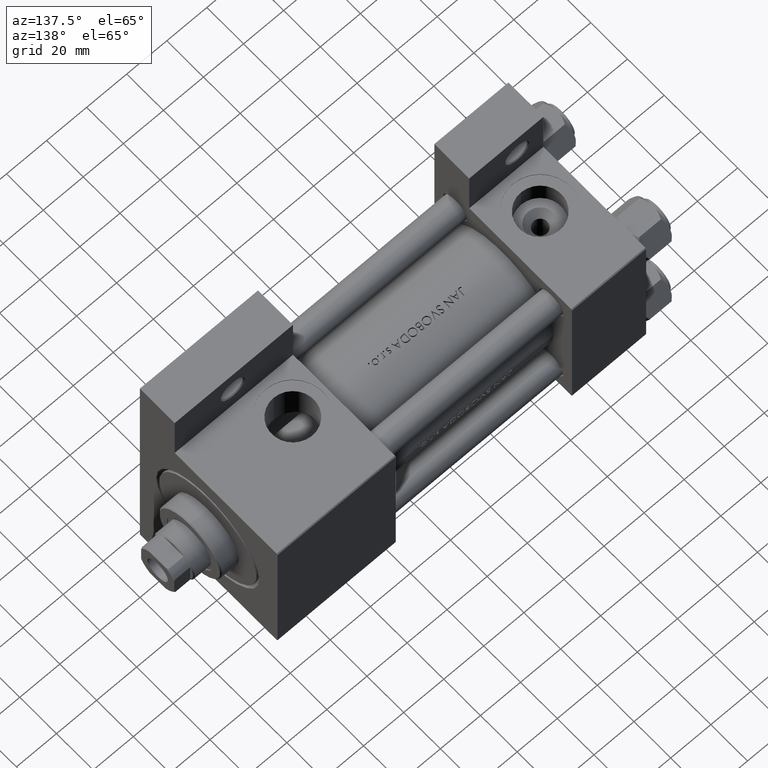
[diagram: clean part render]
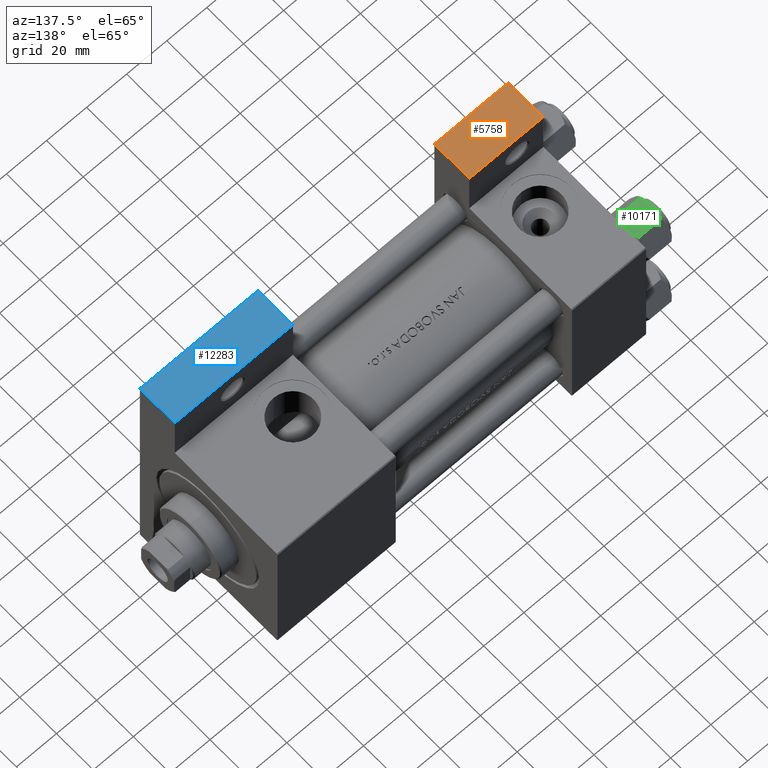
[diagram: same view with three faces highlighted in distinct colors, each labeled with its STEP entity id]
A machine part, auxiliary view with three faces highlighted in distinct colors.
Their STEP definitions:

[orange] entity #5758 — the highlighted planar face has unit normal (0, 0, 1).
#1189 = AXIS2_PLACEMENT_3D ( 'NONE', #5495, #20167, #46115 ) ;
#2026 = CARTESIAN_POINT ( 'NONE',  ( 3.977209754999747208E-16, -63.50000000000000000, -37.49999999999999289 ) ) ;
#2524 = DIRECTION ( 'NONE',  ( 1.000000000000000000, 0.000000000000000000, 0.000000000000000000 ) ) ;
#3813 = CARTESIAN_POINT ( 'NONE',  ( 3.977209754999747208E-16, -63.50000000000000000, -18.50000000000000355 ) ) ;
#4899 = EDGE_CURVE ( 'NONE', #7148, #11601, #11054, .T. ) ;
#5495 = CARTESIAN_POINT ( 'NONE',  ( 3.977209754999747208E-16, -63.49999999999998579, 26.72167621838007889 ) ) ;
#5758 = ADVANCED_FACE ( 'NONE', ( #27377 ), #42034, .T. ) ;
#6208 = DIRECTION ( 'NONE',  ( 0.000000000000000000, -1.734723475976806848E-16, -1.000000000000000000 ) ) ;
#7148 = VERTEX_POINT ( 'NONE', #15722 ) ;
#10285 = VERTEX_POINT ( 'NONE', #33606 ) ;
#11054 = LINE ( 'NONE', #15148, #14994 ) ;
#11601 = VERTEX_POINT ( 'NONE', #2026 ) ;
#12144 = EDGE_CURVE ( 'NONE', #16653, #11601, #40405, .T. ) ;
#14193 = CARTESIAN_POINT ( 'NONE',  ( 3.977209754999747208E-16, -63.49999999999998579, 26.72167621838007889 ) ) ;
#14994 = VECTOR ( 'NONE', #33423, 1000.000000000000000 ) ;
#15148 = CARTESIAN_POINT ( 'NONE',  ( 3.977209754999747208E-16, -63.50000000000000000, -37.49999999999999289 ) ) ;
#15492 = EDGE_CURVE ( 'NONE', #16653, #10285, #28258, .T. ) ;
#15722 = CARTESIAN_POINT ( 'NONE',  ( 37.00000000000000000, -63.50000000000000000, -37.49999999999999289 ) ) ;
#16629 = VECTOR ( 'NONE', #22157, 1000.000000000000000 ) ;
#16653 = VERTEX_POINT ( 'NONE', #3813 ) ;
#20167 = DIRECTION ( 'NONE',  ( 0.000000000000000000, -1.000000000000000000, 1.734723475976806848E-16 ) ) ;
#20189 = ORIENTED_EDGE ( 'NONE', *, *, #4899, .F. ) ;
#20418 = CARTESIAN_POINT ( 'NONE',  ( 37.00000000000000000, -63.49999999999998579, 26.72167621838007889 ) ) ;
#22157 = DIRECTION ( 'NONE',  ( 0.000000000000000000, -1.734723475976806848E-16, -1.000000000000000000 ) ) ;
#27377 = FACE_OUTER_BOUND ( 'NONE', #45777, .T. ) ;
#27788 = CARTESIAN_POINT ( 'NONE',  ( 3.977209754999747208E-16, -63.50000000000000000, -18.50000000000000355 ) ) ;
#28258 = LINE ( 'NONE', #27788, #40553 ) ;
#28334 = LINE ( 'NONE', #20418, #35858 ) ;
#33300 = ORIENTED_EDGE ( 'NONE', *, *, #15492, .F. ) ;
#33423 = DIRECTION ( 'NONE',  ( -1.000000000000000000, -0.000000000000000000, -0.000000000000000000 ) ) ;
#33606 = CARTESIAN_POINT ( 'NONE',  ( 37.00000000000000000, -63.50000000000000000, -18.50000000000000355 ) ) ;
#34463 = EDGE_CURVE ( 'NONE', #10285, #7148, #28334, .T. ) ;
#35858 = VECTOR ( 'NONE', #6208, 1000.000000000000000 ) ;
#40405 = LINE ( 'NONE', #14193, #16629 ) ;
#40553 = VECTOR ( 'NONE', #2524, 1000.000000000000000 ) ;
#40642 = ORIENTED_EDGE ( 'NONE', *, *, #12144, .T. ) ;
#40816 = ORIENTED_EDGE ( 'NONE', *, *, #34463, .F. ) ;
#42034 = PLANE ( 'NONE',  #1189 ) ;
#45777 = EDGE_LOOP ( 'NONE', ( #33300, #40642, #20189, #40816 ) ) ;
#46115 = DIRECTION ( 'NONE',  ( 0.000000000000000000, -1.734723475976806848E-16, -1.000000000000000000 ) ) ;

[blue] entity #12283 — the highlighted planar face has unit normal (-0, 0, 1).
#1299 = CARTESIAN_POINT ( 'NONE',  ( 184.0000000000000000, -63.50000000000002842, -18.50000000000000000 ) ) ;
#2268 = VECTOR ( 'NONE', #23079, 1000.000000000000000 ) ;
#4379 = AXIS2_PLACEMENT_3D ( 'NONE', #32847, #18176, #17931 ) ;
#5177 = DIRECTION ( 'NONE',  ( -1.000000000000000000, 4.704334850106594808E-16, -0.000000000000000000 ) ) ;
#5288 = ORIENTED_EDGE ( 'NONE', *, *, #46496, .F. ) ;
#6078 = ORIENTED_EDGE ( 'NONE', *, *, #35563, .F. ) ;
#8388 = CARTESIAN_POINT ( 'NONE',  ( 124.9999999999999858, -63.50000000000000000, -18.50000000000000000 ) ) ;
#8425 = CARTESIAN_POINT ( 'NONE',  ( 184.0000000000000000, -63.50000000000002842, -18.50000000000000000 ) ) ;
#8581 = EDGE_LOOP ( 'NONE', ( #6078, #5288, #31376, #29450 ) ) ;
#11557 = LINE ( 'NONE', #8425, #34612 ) ;
#12283 = ADVANCED_FACE ( 'NONE', ( #21558 ), #25164, .T. ) ;
#12724 = CARTESIAN_POINT ( 'NONE',  ( 124.9999999999999858, -63.50000000000000000, -37.50000000000000000 ) ) ;
#15178 = VECTOR ( 'NONE', #33909, 1000.000000000000000 ) ;
#17931 = DIRECTION ( 'NONE',  ( 1.000000000000000000, -4.704334850106594808E-16, 0.000000000000000000 ) ) ;
#18176 = DIRECTION ( 'NONE',  ( -4.704334850106594808E-16, -1.000000000000000000, 0.000000000000000000 ) ) ;
#21558 = FACE_OUTER_BOUND ( 'NONE', #8581, .T. ) ;
#21697 = VERTEX_POINT ( 'NONE', #1299 ) ;
#22128 = VECTOR ( 'NONE', #5177, 1000.000000000000000 ) ;
#23079 = DIRECTION ( 'NONE',  ( 0.000000000000000000, 0.000000000000000000, -1.000000000000000000 ) ) ;
#23464 = CARTESIAN_POINT ( 'NONE',  ( 124.9999999999999858, -63.50000000000000000, -18.50000000000000000 ) ) ;
#25164 = PLANE ( 'NONE',  #4379 ) ;
#25473 = CARTESIAN_POINT ( 'NONE',  ( 124.9999999999999858, -63.50000000000000000, -37.50000000000000000 ) ) ;
#27124 = CARTESIAN_POINT ( 'NONE',  ( 184.0000000000000000, -63.50000000000002842, -37.50000000000000000 ) ) ;
#29450 = ORIENTED_EDGE ( 'NONE', *, *, #40061, .T. ) ;
#29639 = VERTEX_POINT ( 'NONE', #25473 ) ;
#31145 = LINE ( 'NONE', #23464, #22128 ) ;
#31376 = ORIENTED_EDGE ( 'NONE', *, *, #36314, .T. ) ;
#31609 = VERTEX_POINT ( 'NONE', #45675 ) ;
#32847 = CARTESIAN_POINT ( 'NONE',  ( 124.9999999999999858, -63.50000000000000000, -18.50000000000000000 ) ) ;
#33909 = DIRECTION ( 'NONE',  ( -1.000000000000000000, 4.704334850106594808E-16, -0.000000000000000000 ) ) ;
#33927 = DIRECTION ( 'NONE',  ( 0.000000000000000000, 0.000000000000000000, -1.000000000000000000 ) ) ;
#34612 = VECTOR ( 'NONE', #33927, 1000.000000000000000 ) ;
#35563 = EDGE_CURVE ( 'NONE', #47176, #29639, #45208, .T. ) ;
#36314 = EDGE_CURVE ( 'NONE', #21697, #31609, #31145, .T. ) ;
#40061 = EDGE_CURVE ( 'NONE', #31609, #29639, #41331, .T. ) ;
#41331 = LINE ( 'NONE', #8388, #2268 ) ;
#45208 = LINE ( 'NONE', #12724, #15178 ) ;
#45675 = CARTESIAN_POINT ( 'NONE',  ( 124.9999999999999858, -63.50000000000000000, -18.50000000000000000 ) ) ;
#46496 = EDGE_CURVE ( 'NONE', #21697, #47176, #11557, .T. ) ;
#47176 = VERTEX_POINT ( 'NONE', #27124 ) ;

[green] entity #10171 — the highlighted planar face has unit normal (0, -0, -1).
#578 = EDGE_CURVE ( 'NONE', #38576, #3978, #42053, .T. ) ;
#1305 = B_SPLINE_CURVE_WITH_KNOTS ( 'NONE', 3,
 ( #1787, #13077, #5632, #20307, #6330, #2017, #21006, #16686, #42410 ),
 .UNSPECIFIED., .F., .F.,
 ( 4, 2, 1, 2, 4 ),
 ( 0.02074012592819902620, 0.02149589804477579011, 0.02225167016135255402, 0.02376321439450608530, 0.02678630286081314441 ),
 .UNSPECIFIED. ) ;
#1342 = CARTESIAN_POINT ( 'NONE',  ( -5.359707691559672860, -10.06321519197517667, -1.331638653804653405 ) ) ;
#1660 = DIRECTION ( 'NONE',  ( -1.000000000000000000, -1.492877345935290102E-16, 0.000000000000000000 ) ) ;
#1732 = LINE ( 'NONE', #20023, #46066 ) ;
#1787 = CARTESIAN_POINT ( 'NONE',  ( 1.502314598737159820E-15, -10.06321519197518022, 0.000000000000000000 ) ) ;
#1886 = PLANE ( 'NONE',  #5068 ) ;
#2017 = CARTESIAN_POINT ( 'NONE',  ( 2.508586450168040383, -10.06321519197517667, -0.2975752632032270806 ) ) ;
#2072 = CARTESIAN_POINT ( 'NONE',  ( 2.013954290287967019, -10.06321519197517489, -13.84298883202400532 ) ) ;
#2603 = ORIENTED_EDGE ( 'NONE', *, *, #30794, .F. ) ;
#3978 = VERTEX_POINT ( 'NONE', #15665 ) ;
#5068 = AXIS2_PLACEMENT_3D ( 'NONE', #41336, #45194, #1660 ) ;
#5632 = CARTESIAN_POINT ( 'NONE',  ( 0.5112014849988887333, -10.06321519197517667, -0.009803979428911684807 ) ) ;
#6330 = CARTESIAN_POINT ( 'NONE',  ( 1.772424303831127812, -10.06321519197517844, -0.1338870921722363216 ) ) ;
#6678 = EDGE_CURVE ( 'NONE', #18391, #39938, #45658, .T. ) ;
#8629 = FACE_OUTER_BOUND ( 'NONE', #19770, .T. ) ;
#9062 = CARTESIAN_POINT ( 'NONE',  ( 1.502314598737159820E-15, -10.06321519197518022, -14.00000000000000000 ) ) ;
#9290 = CARTESIAN_POINT ( 'NONE',  ( 3.958929922320422179, -10.06321519197517489, -13.25786014976459803 ) ) ;
#9325 = EDGE_CURVE ( 'NONE', #39938, #38576, #41800, .T. ) ;
#9664 = CARTESIAN_POINT ( 'NONE',  ( -5.810000000000000497, -10.06321519197517844, -1.556784808024815225 ) ) ;
#9873 = DIRECTION ( 'NONE',  ( -0.000000000000000000, -0.000000000000000000, 1.000000000000000000 ) ) ;
#10094 = CARTESIAN_POINT ( 'NONE',  ( -5.810000000000000497, -10.06321519197517844, -12.44321519197518455 ) ) ;
#10171 = ADVANCED_FACE ( 'NONE', ( #8629 ), #1886, .F. ) ;
#11680 = CARTESIAN_POINT ( 'NONE',  ( -4.900668367960797411, -10.06321519197517844, -1.121556683709773683 ) ) ;
#12399 = CARTESIAN_POINT ( 'NONE',  ( -5.810000000000000497, -10.06321519197517844, -1.556784808024815225 ) ) ;
#12661 = ORIENTED_EDGE ( 'NONE', *, *, #44454, .T. ) ;
#13077 = CARTESIAN_POINT ( 'NONE',  ( 0.2543996698847487137, -10.06321519197517844, 2.651777813537460036E-15 ) ) ;
#15073 = CARTESIAN_POINT ( 'NONE',  ( -0.2543996698847483806, -10.06321519197517667, -14.00000000000000355 ) ) ;
#15295 = CARTESIAN_POINT ( 'NONE',  ( -1.020132157807625450, -10.06321519197517667, 2.398797306624178560E-15 ) ) ;
#15665 = CARTESIAN_POINT ( 'NONE',  ( 1.502314598737159820E-15, -10.06321519197518022, 0.000000000000000000 ) ) ;
#16090 = ORIENTED_EDGE ( 'NONE', *, *, #44265, .F. ) ;
#16686 = CARTESIAN_POINT ( 'NONE',  ( 4.908816193182379273, -10.06321519197517844, -1.106192904616004835 ) ) ;
#16738 = CARTESIAN_POINT ( 'NONE',  ( 1.020132157807625672, -10.06321519197517489, -14.00000000000000178 ) ) ;
#17057 = CARTESIAN_POINT ( 'NONE',  ( 1.502314598737159820E-15, -10.06321519197518022, -14.00000000000000000 ) ) ;
#17442 = CARTESIAN_POINT ( 'NONE',  ( 4.900668367960796523, -10.06321519197517489, -12.87844331629023209 ) ) ;
#17666 = ORIENTED_EDGE ( 'NONE', *, *, #9325, .F. ) ;
#18391 = VERTEX_POINT ( 'NONE', #17057 ) ;
#18679 = CARTESIAN_POINT ( 'NONE',  ( -0.5112014849988886223, -10.06321519197517489, -13.99019602057109068 ) ) ;
#19770 = EDGE_LOOP ( 'NONE', ( #2603, #12661, #16090, #35065, #17666, #21347 ) ) ;
#19775 = VECTOR ( 'NONE', #37961, 1000.000000000000000 ) ;
#20023 = CARTESIAN_POINT ( 'NONE',  ( 5.810000000000000497, -10.06321519197517667, -14.00000000000000000 ) ) ;
#20307 = CARTESIAN_POINT ( 'NONE',  ( 1.018274738099085086, -10.06321519197517311, -0.04822742080070722276 ) ) ;
#21006 = CARTESIAN_POINT ( 'NONE',  ( 3.960942496020602555, -10.06321519197517667, -0.7115728323610392980 ) ) ;
#21347 = ORIENTED_EDGE ( 'NONE', *, *, #6678, .F. ) ;
#23003 = CARTESIAN_POINT ( 'NONE',  ( -3.474497094393253604, -10.06321519197517844, -0.5726960901042740248 ) ) ;
#24942 = CARTESIAN_POINT ( 'NONE',  ( -2.508586450168039494, -10.06321519197517844, -13.70242473679676998 ) ) ;
#25189 = CARTESIAN_POINT ( 'NONE',  ( -3.960942496020602555, -10.06321519197517667, -13.28842716763895737 ) ) ;
#26803 = VERTEX_POINT ( 'NONE', #35640 ) ;
#26838 = CARTESIAN_POINT ( 'NONE',  ( 1.502314598737159820E-15, -10.06321519197518022, 0.000000000000000000 ) ) ;
#29506 = CARTESIAN_POINT ( 'NONE',  ( -1.772424303831128478, -10.06321519197517489, -13.86611290782776251 ) ) ;
#30794 = EDGE_CURVE ( 'NONE', #37263, #18391, #42316, .T. ) ;
#35065 = ORIENTED_EDGE ( 'NONE', *, *, #578, .F. ) ;
#35640 = CARTESIAN_POINT ( 'NONE',  ( 5.810000000000000497, -10.06321519197517667, -1.556784808024813671 ) ) ;
#35993 = CARTESIAN_POINT ( 'NONE',  ( -4.908816193182379273, -10.06321519197517667, -12.89380709538398939 ) ) ;
#36963 = CARTESIAN_POINT ( 'NONE',  ( -5.810000000000000497, -10.06321519197517844, -12.44321519197518455 ) ) ;
#37263 = VERTEX_POINT ( 'NONE', #46039 ) ;
#37493 = CARTESIAN_POINT ( 'NONE',  ( -5.810000000000000497, -10.06321519197517844, -14.00000000000000000 ) ) ;
#37961 = DIRECTION ( 'NONE',  ( -0.000000000000000000, -0.000000000000000000, 1.000000000000000000 ) ) ;
#38576 = VERTEX_POINT ( 'NONE', #9664 ) ;
#39938 = VERTEX_POINT ( 'NONE', #10094 ) ;
#41336 = CARTESIAN_POINT ( 'NONE',  ( 5.810000000000000497, -10.06321519197517667, -14.00000000000000000 ) ) ;
#41731 = CARTESIAN_POINT ( 'NONE',  ( -2.013954290287966575, -10.06321519197517844, -0.1570111679759964574 ) ) ;
#41800 = LINE ( 'NONE', #37493, #19775 ) ;
#42053 = B_SPLINE_CURVE_WITH_KNOTS ( 'NONE', 3,
 ( #12399, #1342, #11680, #45110, #23003, #41731, #15295, #26838 ),
 .UNSPECIFIED., .F., .F.,
 ( 4, 2, 2, 4 ),
 ( 0.01467889604968879505, 0.01619420351931635110, 0.01770951098894391063, 0.02074012592819902620 ),
 .UNSPECIFIED. ) ;
#42237 = CARTESIAN_POINT ( 'NONE',  ( 5.810000000000000497, -10.06321519197517667, -12.44321519197518633 ) ) ;
#42316 = B_SPLINE_CURVE_WITH_KNOTS ( 'NONE', 3,
 ( #42237, #46080, #17442, #9290, #46786, #2072, #16738, #9062 ),
 .UNSPECIFIED., .F., .F.,
 ( 4, 2, 2, 4 ),
 ( 0.01467889604968879332, 0.01619420351931635110, 0.01770951098894391063, 0.02074012592819902620 ),
 .UNSPECIFIED. ) ;
#42410 = CARTESIAN_POINT ( 'NONE',  ( 5.810000000000000497, -10.06321519197517667, -1.556784808024813671 ) ) ;
#43686 = CARTESIAN_POINT ( 'NONE',  ( -1.018274738099085086, -10.06321519197517667, -13.95177257919929126 ) ) ;
#43928 = CARTESIAN_POINT ( 'NONE',  ( 1.502314598737159820E-15, -10.06321519197518022, -14.00000000000000000 ) ) ;
#44265 = EDGE_CURVE ( 'NONE', #3978, #26803, #1305, .T. ) ;
#44454 = EDGE_CURVE ( 'NONE', #37263, #26803, #1732, .T. ) ;
#45110 = CARTESIAN_POINT ( 'NONE',  ( -3.958929922320422179, -10.06321519197517667, -0.7421398502353990789 ) ) ;
#45194 = DIRECTION ( 'NONE',  ( -1.492877345935290102E-16, 1.000000000000000000, 0.000000000000000000 ) ) ;
#45658 = B_SPLINE_CURVE_WITH_KNOTS ( 'NONE', 3,
 ( #43928, #15073, #18679, #43686, #29506, #24942, #25189, #35993, #36963 ),
 .UNSPECIFIED., .F., .F.,
 ( 4, 2, 1, 2, 4 ),
 ( 0.02074012592819902620, 0.02149589804477579011, 0.02225167016135255749, 0.02376321439450608530, 0.02678630286081314441 ),
 .UNSPECIFIED. ) ;
#46039 = CARTESIAN_POINT ( 'NONE',  ( 5.810000000000000497, -10.06321519197517667, -12.44321519197518633 ) ) ;
#46066 = VECTOR ( 'NONE', #9873, 1000.000000000000000 ) ;
#46080 = CARTESIAN_POINT ( 'NONE',  ( 5.359707691559676412, -10.06321519197517844, -12.66836134619534882 ) ) ;
#46786 = CARTESIAN_POINT ( 'NONE',  ( 3.474497094393254049, -10.06321519197517667, -13.42730390989572697 ) ) ;